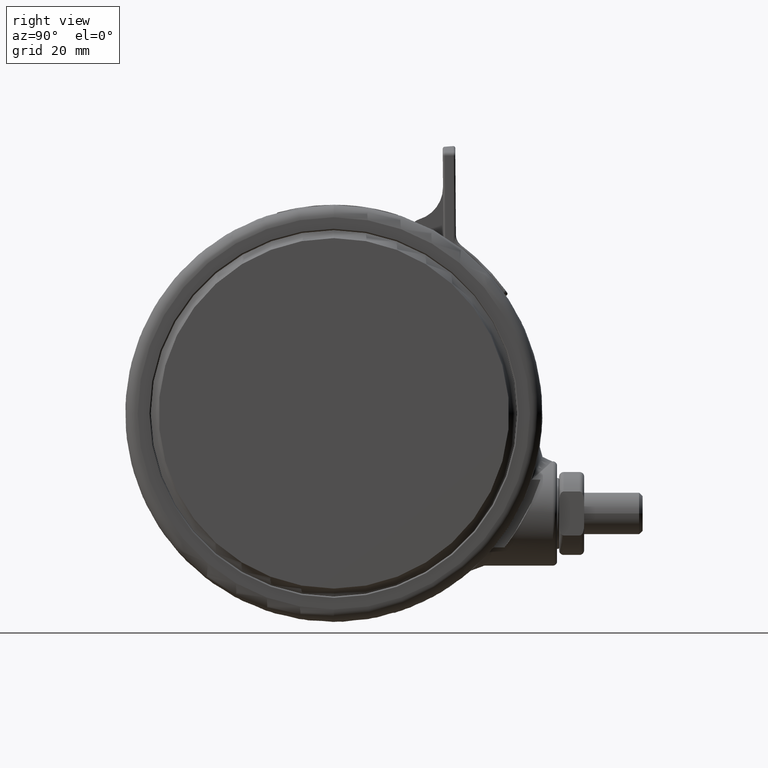
[diagram: clean part render]
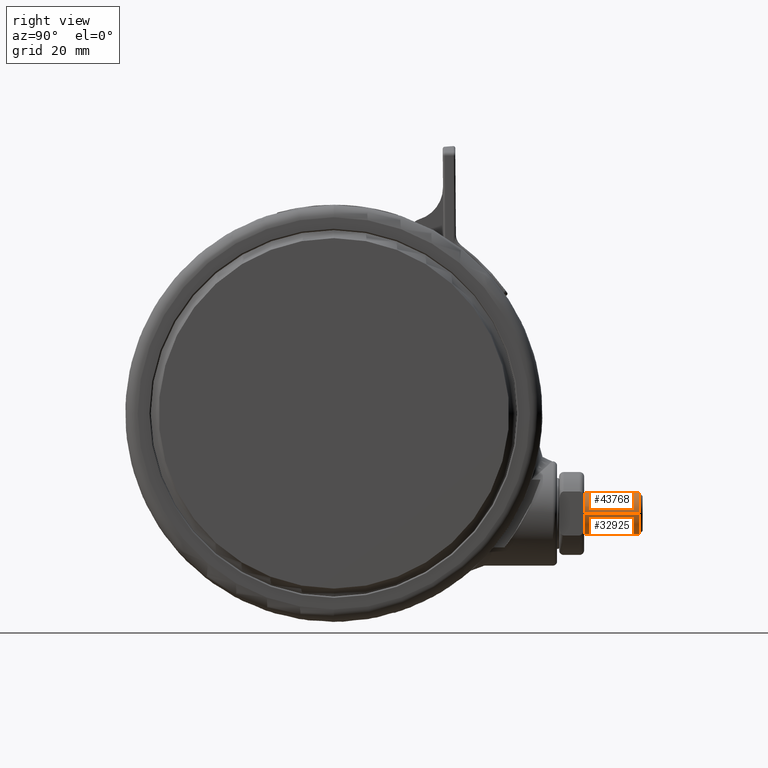
[diagram: same view with one multi-face feature highlighted, each face labeled with its STEP entity id]
A machine part, right view. The highlighted faces form ONE feature: a constant-radius fillet chain: 2 tangent blend faces with common blend radius 5 mm. The faces share edges in the B-rep.
Their STEP definitions:
[1] entity #43768 (Cylinder):
#197 = VERTEX_POINT ( 'NONE', #23413 ) ;
#264 = AXIS2_PLACEMENT_3D ( 'NONE', #17805, #44219, #21596 ) ;
#1403 = FACE_OUTER_BOUND ( 'NONE', #45195, .T. ) ;
#4332 = VECTOR ( 'NONE', #24200, 1000.000000000000000 ) ;
#5102 = CARTESIAN_POINT ( 'NONE',  ( -23.99999999999998900, -73.18999999999999800, -24.29999999999995500 ) ) ;
#5739 = CIRCLE ( 'NONE', #264, 5.000000000000000900 ) ;
#6052 = ORIENTED_EDGE ( 'NONE', *, *, #42740, .T. ) ;
#8598 = VECTOR ( 'NONE', #37893, 1000.000000000000000 ) ;
#8883 = DIRECTION ( 'NONE',  ( 0.0000000000000000000, 0.0000000000000000000, 1.000000000000000000 ) ) ;
#9129 = AXIS2_PLACEMENT_3D ( 'NONE', #12883, #31738, #39336 ) ;
#10234 = CYLINDRICAL_SURFACE ( 'NONE', #9129, 5.000000000000000900 ) ;
#12883 = CARTESIAN_POINT ( 'NONE',  ( -23.99999999999998900, -74.00000000000000000, -24.29999999999995500 ) ) ;
#14058 = ORIENTED_EDGE ( 'NONE', *, *, #14299, .T. ) ;
#14299 = EDGE_CURVE ( 'NONE', #42285, #33434, #31583, .T. ) ;
#14910 = EDGE_CURVE ( 'NONE', #42285, #197, #24427, .T. ) ;
#15239 = CARTESIAN_POINT ( 'NONE',  ( -23.99999999999998900, -74.00000000000000000, -29.29999999999995500 ) ) ;
#15338 = CARTESIAN_POINT ( 'NONE',  ( -23.99999999999998900, -73.18999999999999800, -19.29999999999994700 ) ) ;
#16867 = ORIENTED_EDGE ( 'NONE', *, *, #25933, .T. ) ;
#17805 = CARTESIAN_POINT ( 'NONE',  ( -23.99999999999999300, -59.99999999999999300, -24.29999999999995500 ) ) ;
#20402 = CARTESIAN_POINT ( 'NONE',  ( -23.99999999999998900, -74.00000000000000000, -19.29999999999995100 ) ) ;
#21596 = DIRECTION ( 'NONE',  ( 0.0000000000000000000, 0.0000000000000000000, 1.000000000000000000 ) ) ;
#23413 = CARTESIAN_POINT ( 'NONE',  ( -23.99999999999999300, -59.99999999999999300, -19.29999999999995100 ) ) ;
#24200 = DIRECTION ( 'NONE',  ( -2.360897160001558300E-016, 1.000000000000000000, -6.688773330916214400E-017 ) ) ;
#24427 = LINE ( 'NONE', #20402, #4332 ) ;
#25933 = EDGE_CURVE ( 'NONE', #33434, #36859, #37594, .T. ) ;
#26390 = ORIENTED_EDGE ( 'NONE', *, *, #14910, .F. ) ;
#31534 = DIRECTION ( 'NONE',  ( -2.360897160001558300E-016, 1.000000000000000000, -6.688773330916214400E-017 ) ) ;
#31583 = CIRCLE ( 'NONE', #43494, 5.000000000000000900 ) ;
#31738 = DIRECTION ( 'NONE',  ( -2.360897160001558300E-016, 1.000000000000000000, -6.688773330916214400E-017 ) ) ;
#33434 = VERTEX_POINT ( 'NONE', #41603 ) ;
#36859 = VERTEX_POINT ( 'NONE', #43726 ) ;
#37594 = LINE ( 'NONE', #15239, #8598 ) ;
#37893 = DIRECTION ( 'NONE',  ( -2.360897160001558300E-016, 1.000000000000000000, -6.688773330916214400E-017 ) ) ;
#39336 = DIRECTION ( 'NONE',  ( 0.0000000000000000000, 0.0000000000000000000, -1.000000000000000000 ) ) ;
#41603 = CARTESIAN_POINT ( 'NONE',  ( -23.99999999999998900, -73.18999999999999800, -29.29999999999995800 ) ) ;
#42285 = VERTEX_POINT ( 'NONE', #15338 ) ;
#42740 = EDGE_CURVE ( 'NONE', #36859, #197, #5739, .T. ) ;
#43494 = AXIS2_PLACEMENT_3D ( 'NONE', #5102, #31534, #8883 ) ;
#43726 = CARTESIAN_POINT ( 'NONE',  ( -23.99999999999999300, -59.99999999999999300, -29.29999999999995500 ) ) ;
#43768 = ADVANCED_FACE ( 'NONE', ( #1403 ), #10234, .T. ) ;
#44219 = DIRECTION ( 'NONE',  ( 2.360897160001558300E-016, -1.000000000000000000, 6.688773330916214400E-017 ) ) ;
#45195 = EDGE_LOOP ( 'NONE', ( #26390, #14058, #16867, #6052 ) ) ;
[2] entity #32925 (Cylinder):
#197 = VERTEX_POINT ( 'NONE', #23413 ) ;
#4332 = VECTOR ( 'NONE', #24200, 1000.000000000000000 ) ;
#5241 = AXIS2_PLACEMENT_3D ( 'NONE', #10032, #36472, #13834 ) ;
#7959 = DIRECTION ( 'NONE',  ( -2.360897160001558300E-016, 1.000000000000000000, -6.688773330916214400E-017 ) ) ;
#8598 = VECTOR ( 'NONE', #37893, 1000.000000000000000 ) ;
#10032 = CARTESIAN_POINT ( 'NONE',  ( -23.99999999999999300, -59.99999999999999300, -24.29999999999995500 ) ) ;
#11743 = CARTESIAN_POINT ( 'NONE',  ( -23.99999999999998900, -74.00000000000000000, -24.29999999999995500 ) ) ;
#13834 = DIRECTION ( 'NONE',  ( 0.0000000000000000000, 0.0000000000000000000, 1.000000000000000000 ) ) ;
#14910 = EDGE_CURVE ( 'NONE', #42285, #197, #24427, .T. ) ;
#15239 = CARTESIAN_POINT ( 'NONE',  ( -23.99999999999998900, -74.00000000000000000, -29.29999999999995500 ) ) ;
#15338 = CARTESIAN_POINT ( 'NONE',  ( -23.99999999999998900, -73.18999999999999800, -19.29999999999994700 ) ) ;
#15539 = DIRECTION ( 'NONE',  ( 0.0000000000000000000, 0.0000000000000000000, -1.000000000000000000 ) ) ;
#18206 = ORIENTED_EDGE ( 'NONE', *, *, #25933, .F. ) ;
#18620 = DIRECTION ( 'NONE',  ( -2.360897160001558300E-016, 1.000000000000000000, -6.688773330916214400E-017 ) ) ;
#20402 = CARTESIAN_POINT ( 'NONE',  ( -23.99999999999998900, -74.00000000000000000, -19.29999999999995100 ) ) ;
#23413 = CARTESIAN_POINT ( 'NONE',  ( -23.99999999999999300, -59.99999999999999300, -19.29999999999995100 ) ) ;
#23899 = ORIENTED_EDGE ( 'NONE', *, *, #37944, .T. ) ;
#24200 = DIRECTION ( 'NONE',  ( -2.360897160001558300E-016, 1.000000000000000000, -6.688773330916214400E-017 ) ) ;
#24427 = LINE ( 'NONE', #20402, #4332 ) ;
#24590 = CIRCLE ( 'NONE', #5241, 5.000000000000000900 ) ;
#25339 = ORIENTED_EDGE ( 'NONE', *, *, #14910, .T. ) ;
#25378 = ORIENTED_EDGE ( 'NONE', *, *, #48927, .T. ) ;
#25933 = EDGE_CURVE ( 'NONE', #33434, #36859, #37594, .T. ) ;
#30319 = EDGE_LOOP ( 'NONE', ( #23899, #25339, #25378, #18206 ) ) ;
#32925 = ADVANCED_FACE ( 'NONE', ( #35566 ), #42082, .T. ) ;
#33434 = VERTEX_POINT ( 'NONE', #41603 ) ;
#35215 = AXIS2_PLACEMENT_3D ( 'NONE', #41256, #18620, #45018 ) ;
#35566 = FACE_OUTER_BOUND ( 'NONE', #30319, .T. ) ;
#36472 = DIRECTION ( 'NONE',  ( 2.360897160001558300E-016, -1.000000000000000000, 6.688773330916214400E-017 ) ) ;
#36859 = VERTEX_POINT ( 'NONE', #43726 ) ;
#37594 = LINE ( 'NONE', #15239, #8598 ) ;
#37893 = DIRECTION ( 'NONE',  ( -2.360897160001558300E-016, 1.000000000000000000, -6.688773330916214400E-017 ) ) ;
#37944 = EDGE_CURVE ( 'NONE', #33434, #42285, #43378, .T. ) ;
#41256 = CARTESIAN_POINT ( 'NONE',  ( -23.99999999999998900, -73.18999999999999800, -24.29999999999995500 ) ) ;
#41603 = CARTESIAN_POINT ( 'NONE',  ( -23.99999999999998900, -73.18999999999999800, -29.29999999999995800 ) ) ;
#42082 = CYLINDRICAL_SURFACE ( 'NONE', #47363, 5.000000000000000900 ) ;
#42285 = VERTEX_POINT ( 'NONE', #15338 ) ;
#43378 = CIRCLE ( 'NONE', #35215, 5.000000000000000900 ) ;
#43726 = CARTESIAN_POINT ( 'NONE',  ( -23.99999999999999300, -59.99999999999999300, -29.29999999999995500 ) ) ;
#45018 = DIRECTION ( 'NONE',  ( 0.0000000000000000000, 0.0000000000000000000, 1.000000000000000000 ) ) ;
#47363 = AXIS2_PLACEMENT_3D ( 'NONE', #11743, #7959, #15539 ) ;
#48927 = EDGE_CURVE ( 'NONE', #197, #36859, #24590, .T. ) ;